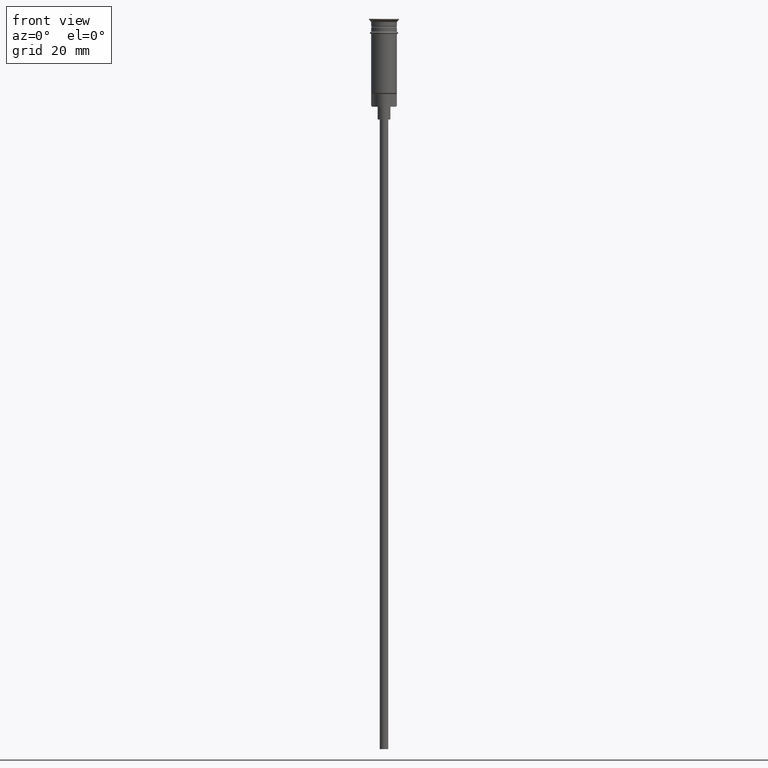
[diagram: clean part render]
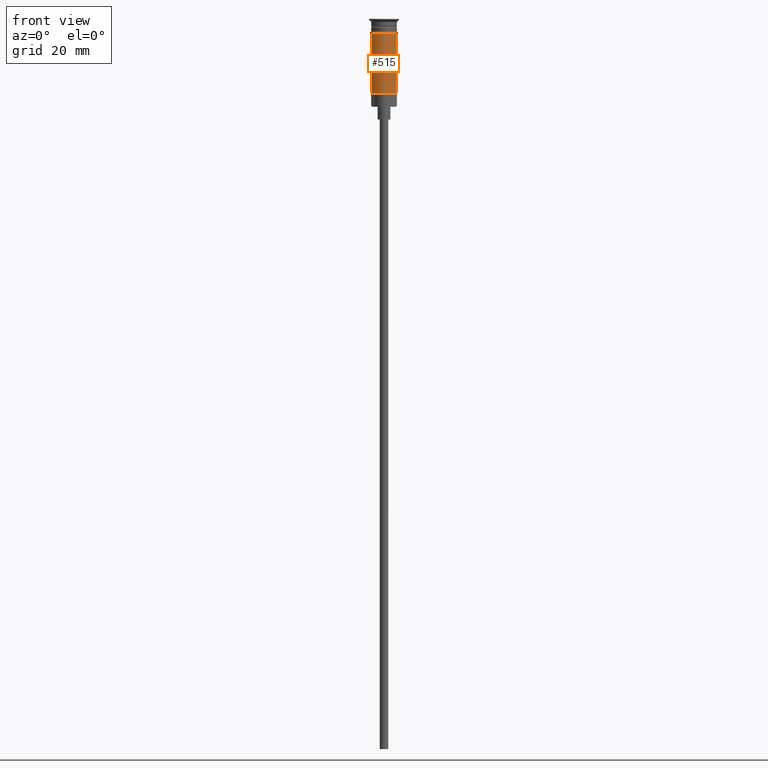
[diagram: same view with one face highlighted and labeled with its STEP entity id]
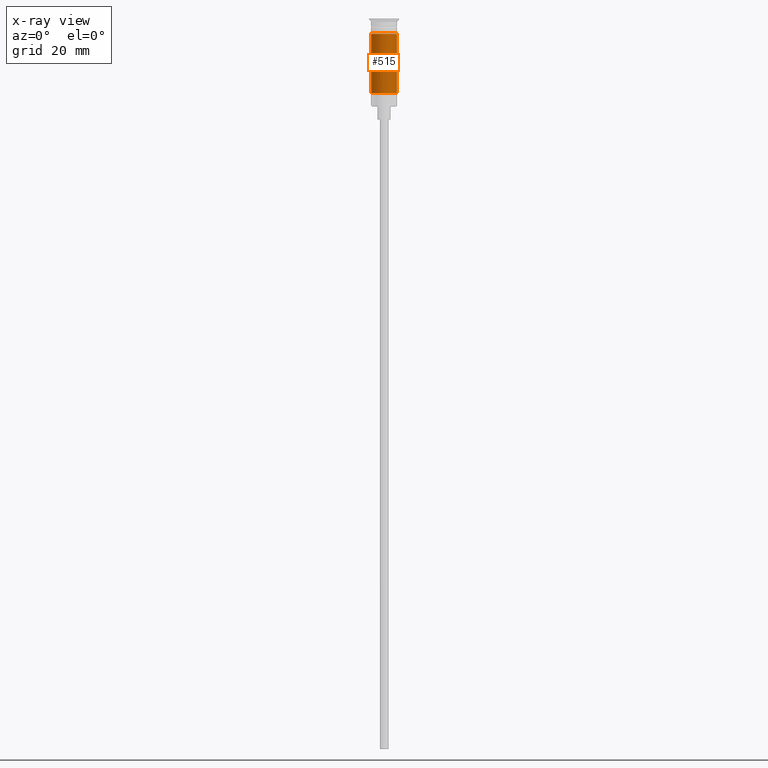
[diagram: x-ray of the same camera — body ghosted, the highlighted face saturated]
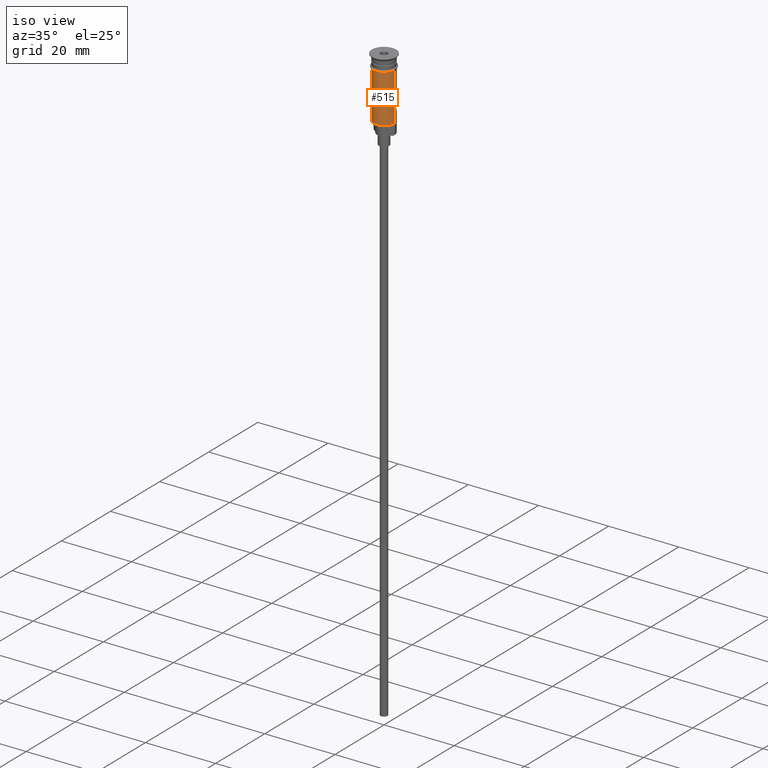
[diagram: same view with one face highlighted and labeled with its STEP entity id]
A machine part, front view. The second image highlights one B-rep face of the part: STEP entity #515.
The next image is the same camera in x-ray: the body ghosted, the highlighted face saturated — about 0% of this face is hidden behind the body in this view.
A second angle (iso view) of the same face is appended — the face is thin or edge-on in the first view.
In plain terms, the highlighted cylindrical surface (edge-blend (fillet) strip) has radius 3 mm, axis along (-0, -0, 1).
Its self-contained STEP definition (entity closure, byte-faithful):
#1 = VERTEX_POINT ( 'NONE', #655 ) ;
#49 = DIRECTION ( 'NONE',  ( -0.000000000000000000, -0.000000000000000000, 1.000000000000000000 ) ) ;
#56 = LINE ( 'NONE', #425, #186 ) ;
#67 = FACE_OUTER_BOUND ( 'NONE', #248, .T. ) ;
#76 = CARTESIAN_POINT ( 'NONE',  ( 0.000000000000000000, 0.000000000000000000, -3.499999999999998668 ) ) ;
#128 = ORIENTED_EDGE ( 'NONE', *, *, #913, .T. ) ;
#161 = EDGE_CURVE ( 'NONE', #440, #1, #675, .T. ) ;
#175 = DIRECTION ( 'NONE',  ( 1.000000000000000000, 0.000000000000000000, 0.000000000000000000 ) ) ;
#181 = CARTESIAN_POINT ( 'NONE',  ( 0.000000000000000000, 0.000000000000000000, -17.30000000000000782 ) ) ;
#186 = VECTOR ( 'NONE', #49, 1000.000000000000000 ) ;
#198 = CARTESIAN_POINT ( 'NONE',  ( -2.999999999999995115, 0.000000000000000000, -17.30000000000000782 ) ) ;
#235 = AXIS2_PLACEMENT_3D ( 'NONE', #935, #942, #175 ) ;
#248 = EDGE_LOOP ( 'NONE', ( #1530, #1507, #128, #1297 ) ) ;
#300 = DIRECTION ( 'NONE',  ( -1.000000000000000000, 0.000000000000000000, 0.000000000000000000 ) ) ;
#424 = VERTEX_POINT ( 'NONE', #1495 ) ;
#425 = CARTESIAN_POINT ( 'NONE',  ( 2.999999999999996891, 0.000000000000000000, 0.000000000000000000 ) ) ;
#440 = VERTEX_POINT ( 'NONE', #1148 ) ;
#515 = ADVANCED_FACE ( 'NONE', ( #67 ), #1440, .T. ) ;
#537 = DIRECTION ( 'NONE',  ( -0.000000000000000000, -0.000000000000000000, 1.000000000000000000 ) ) ;
#566 = EDGE_CURVE ( 'NONE', #1451, #424, #1359, .T. ) ;
#571 = AXIS2_PLACEMENT_3D ( 'NONE', #181, #537, #300 ) ;
#600 = LINE ( 'NONE', #1091, #920 ) ;
#655 = CARTESIAN_POINT ( 'NONE',  ( 2.999999999999998668, 0.000000000000000000, -3.499999999999998668 ) ) ;
#675 = CIRCLE ( 'NONE', #1304, 2.999999999999998668 ) ;
#913 = EDGE_CURVE ( 'NONE', #424, #1, #56, .T. ) ;
#920 = VECTOR ( 'NONE', #1113, 1000.000000000000000 ) ;
#930 = DIRECTION ( 'NONE',  ( -0.000000000000000000, -0.000000000000000000, 1.000000000000000000 ) ) ;
#935 = CARTESIAN_POINT ( 'NONE',  ( 0.000000000000000000, 0.000000000000000000, 0.000000000000000000 ) ) ;
#942 = DIRECTION ( 'NONE',  ( -0.000000000000000000, -0.000000000000000000, 1.000000000000000000 ) ) ;
#1091 = CARTESIAN_POINT ( 'NONE',  ( -2.999999999999996891, 3.673940397442055924E-16, 0.000000000000000000 ) ) ;
#1113 = DIRECTION ( 'NONE',  ( -0.000000000000000000, -0.000000000000000000, 1.000000000000000000 ) ) ;
#1119 = EDGE_CURVE ( 'NONE', #1451, #440, #600, .T. ) ;
#1148 = CARTESIAN_POINT ( 'NONE',  ( -2.999999999999999112, 3.673940397442058389E-16, -3.499999999999998668 ) ) ;
#1297 = ORIENTED_EDGE ( 'NONE', *, *, #161, .F. ) ;
#1304 = AXIS2_PLACEMENT_3D ( 'NONE', #76, #930, #1426 ) ;
#1359 = CIRCLE ( 'NONE', #571, 2.999999999999996891 ) ;
#1426 = DIRECTION ( 'NONE',  ( 1.000000000000000000, 0.000000000000000000, 0.000000000000000000 ) ) ;
#1440 = CYLINDRICAL_SURFACE ( 'NONE', #235, 2.999999999999996891 ) ;
#1451 = VERTEX_POINT ( 'NONE', #198 ) ;
#1495 = CARTESIAN_POINT ( 'NONE',  ( 2.999999999999996891, 3.673940397442055924E-16, -17.30000000000000782 ) ) ;
#1507 = ORIENTED_EDGE ( 'NONE', *, *, #566, .T. ) ;
#1530 = ORIENTED_EDGE ( 'NONE', *, *, #1119, .F. ) ;